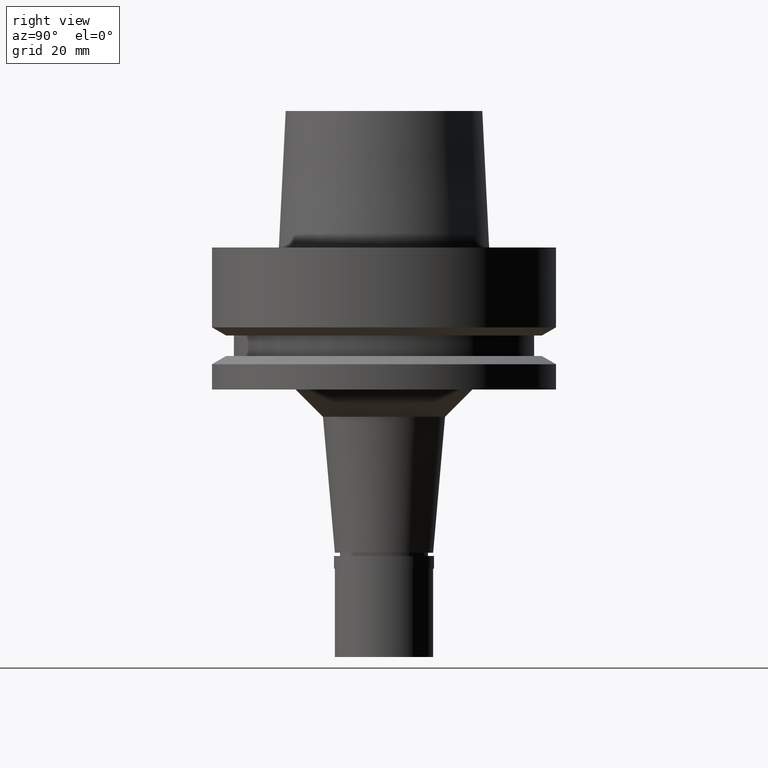
[diagram: clean part render]
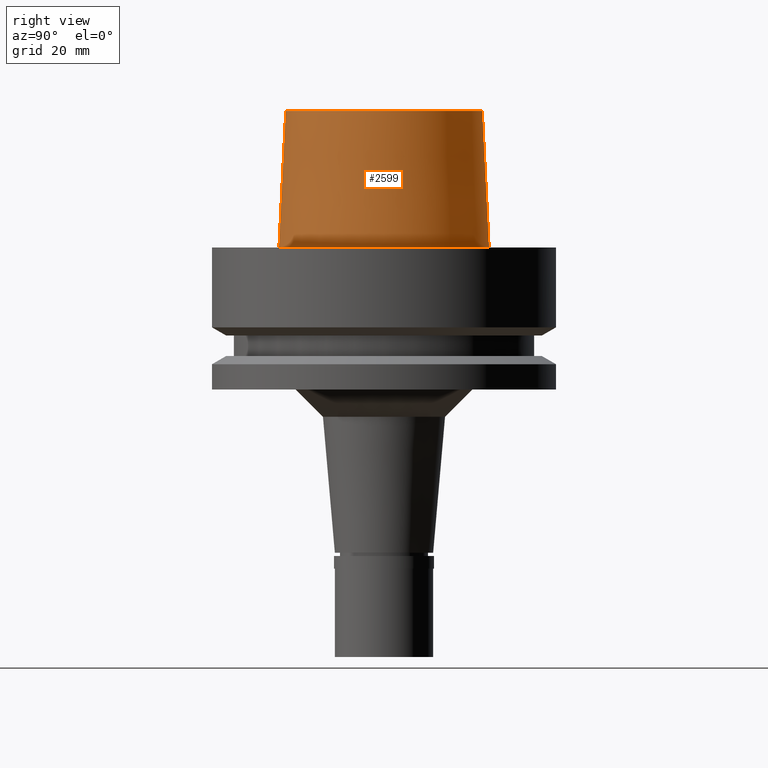
[diagram: same view with one face highlighted and labeled with its STEP entity id]
A machine part, right view. The second image highlights one B-rep face of the part: STEP entity #2599.
In plain terms, the highlighted conical surface has half-angle 2.862 deg.
Its self-contained STEP definition (entity closure, byte-faithful):
#32 = DIRECTION ( 'NONE',  ( 0.0000000000000000000, -1.000000000000000000, 0.0000000000000000000 ) ) ;
#150 = EDGE_CURVE ( 'NONE', #942, #1012, #335, .T. ) ;
#169 = DIRECTION ( 'NONE',  ( 0.0000000000000000000, -0.04993752584486958745, -0.9987523434327917338 ) ) ;
#175 = CARTESIAN_POINT ( 'NONE',  ( 0.0000000000000000000, 18.00000182882000033, 25.00000000000000000 ) ) ;
#231 = CARTESIAN_POINT ( 'NONE',  ( 0.0000000000000000000, -19.24999954280000125, 2.273736754432000254E-13 ) ) ;
#247 = VECTOR ( 'NONE', #169, 999.9999999999998863 ) ;
#248 = DIRECTION ( 'NONE',  ( 0.0000000000000000000, 0.0000000000000000000, -1.000000000000000000 ) ) ;
#258 = CONICAL_SURFACE ( 'NONE', #2497, 18.62500068580999724, 0.04995830450907576964 ) ;
#335 = CIRCLE ( 'NONE', #1373, 18.00000182882000033 ) ;
#498 = EDGE_CURVE ( 'NONE', #1012, #647, #2006, .T. ) ;
#582 = DIRECTION ( 'NONE',  ( 0.0000000000000000000, -1.000000000000000000, 0.0000000000000000000 ) ) ;
#647 = VERTEX_POINT ( 'NONE', #231 ) ;
#800 = VERTEX_POINT ( 'NONE', #1988 ) ;
#805 = ORIENTED_EDGE ( 'NONE', *, *, #498, .T. ) ;
#835 = CARTESIAN_POINT ( 'NONE',  ( 0.0000000000000000000, 1.377727649040999975E-14, 12.50000000000000000 ) ) ;
#884 = DIRECTION ( 'NONE',  ( 0.0000000000000000000, 1.000000000000000000, 0.0000000000000000000 ) ) ;
#895 = CARTESIAN_POINT ( 'NONE',  ( 0.0000000000000000000, 1.377727649040999975E-14, 25.00000000000000000 ) ) ;
#942 = VERTEX_POINT ( 'NONE', #1566 ) ;
#963 = CARTESIAN_POINT ( 'NONE',  ( 0.0000000000000000000, -18.00000182882000033, 25.00000000000000000 ) ) ;
#1012 = VERTEX_POINT ( 'NONE', #2055 ) ;
#1040 = DIRECTION ( 'NONE',  ( 0.0000000000000000000, 0.0000000000000000000, 1.000000000000000000 ) ) ;
#1212 = DIRECTION ( 'NONE',  ( 0.0000000000000000000, 0.0000000000000000000, -1.000000000000000000 ) ) ;
#1328 = EDGE_CURVE ( 'NONE', #647, #800, #2488, .T. ) ;
#1373 = AXIS2_PLACEMENT_3D ( 'NONE', #895, #248, #884 ) ;
#1511 = VECTOR ( 'NONE', #2444, 999.9999999999998863 ) ;
#1553 = AXIS2_PLACEMENT_3D ( 'NONE', #2304, #1040, #32 ) ;
#1566 = CARTESIAN_POINT ( 'NONE',  ( 0.0000000000000000000, 18.00000182882000033, 25.00000000000000000 ) ) ;
#1632 = ORIENTED_EDGE ( 'NONE', *, *, #150, .T. ) ;
#1988 = CARTESIAN_POINT ( 'NONE',  ( 0.0000000000000000000, 19.24999954280000125, 0.0000000000000000000 ) ) ;
#2006 = LINE ( 'NONE', #963, #247 ) ;
#2055 = CARTESIAN_POINT ( 'NONE',  ( 0.0000000000000000000, -18.00000182882000033, 25.00000000000000000 ) ) ;
#2246 = EDGE_CURVE ( 'NONE', #942, #800, #2660, .T. ) ;
#2247 = FACE_OUTER_BOUND ( 'NONE', #2667, .T. ) ;
#2304 = CARTESIAN_POINT ( 'NONE',  ( 0.0000000000000000000, 1.377727649040999975E-14, 2.273736754432000254E-13 ) ) ;
#2366 = ORIENTED_EDGE ( 'NONE', *, *, #1328, .T. ) ;
#2444 = DIRECTION ( 'NONE',  ( 0.0000000000000000000, 0.04993752584486958745, -0.9987523434327917338 ) ) ;
#2488 = CIRCLE ( 'NONE', #1553, 19.24999954280000125 ) ;
#2497 = AXIS2_PLACEMENT_3D ( 'NONE', #835, #1212, #582 ) ;
#2513 = ORIENTED_EDGE ( 'NONE', *, *, #2246, .F. ) ;
#2599 = ADVANCED_FACE ( 'NONE', ( #2247 ), #258, .T. ) ;
#2660 = LINE ( 'NONE', #175, #1511 ) ;
#2667 = EDGE_LOOP ( 'NONE', ( #1632, #805, #2366, #2513 ) ) ;